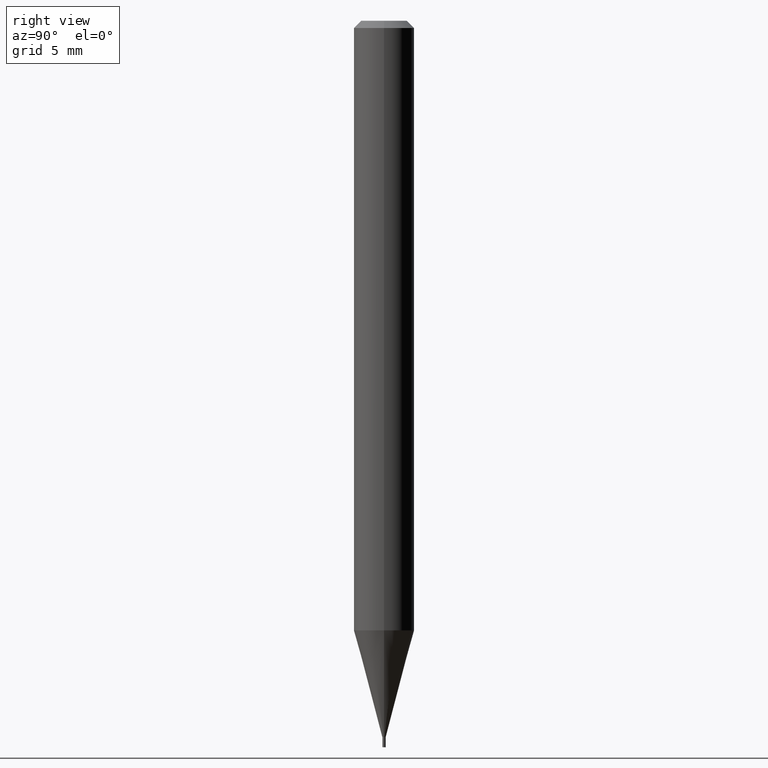
[diagram: clean part render]
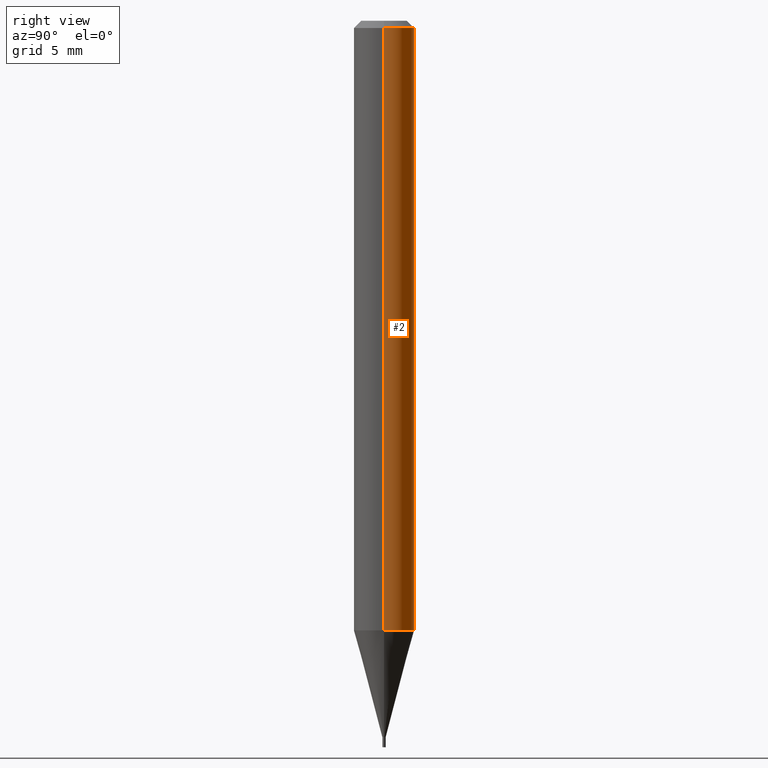
[diagram: same view with one face highlighted and labeled with its STEP entity id]
A machine part, right view. The second image highlights one B-rep face of the part: STEP entity #2.
In plain terms, the highlighted cylindrical surface (edge-blend (fillet) strip) has radius 1.5875 mm, axis along (-0, 0, 1).
Its self-contained STEP definition (entity closure, byte-faithful):
#2 = ADVANCED_FACE ( 'NONE', ( #253 ), #115, .T. ) ;
#17 = VECTOR ( 'NONE', #47, 39.37007874015748143 ) ;
#47 = DIRECTION ( 'NONE',  ( -2.445468806185136877E-29, 3.491481338843145188E-15, 1.000000000000000000 ) ) ;
#49 = CARTESIAN_POINT ( 'NONE',  ( -0.06250000000000000000, -1.779650970633650017E-15, -0.01499999999999999944 ) ) ;
#50 = ORIENTED_EDGE ( 'NONE', *, *, #240, .T. ) ;
#51 = CARTESIAN_POINT ( 'NONE',  ( 0.06250000000000000000, -4.831543308240170251E-15, -1.258809002353435513 ) ) ;
#55 = CIRCLE ( 'NONE', #417, 0.06250000000000000000 ) ;
#71 = DIRECTION ( 'NONE',  ( 1.000000000000000000, -6.982962677686266711E-15, 4.876176775795935793E-29 ) ) ;
#115 = CYLINDRICAL_SURFACE ( 'NONE', #424, 0.06250000000000000000 ) ;
#132 = VERTEX_POINT ( 'NONE', #279 ) ;
#139 = CARTESIAN_POINT ( 'NONE',  ( -0.06250000000000000000, -3.951018931034715176E-15, -1.258809002353435513 ) ) ;
#149 = DIRECTION ( 'NONE',  ( -2.445468806185136597E-29, 3.491481338843145583E-15, 1.000000000000000000 ) ) ;
#156 = VERTEX_POINT ( 'NONE', #49 ) ;
#157 = EDGE_CURVE ( 'NONE', #132, #156, #280, .T. ) ;
#219 = CARTESIAN_POINT ( 'NONE',  ( -0.06250000000000000000, 4.440892098500626162E-16, -3.074334431409316114E-30 ) ) ;
#228 = DIRECTION ( 'NONE',  ( -2.445468806185136597E-29, 3.491481338843145583E-15, 1.000000000000000000 ) ) ;
#231 = LINE ( 'NONE', #300, #17 ) ;
#237 = ORIENTED_EDGE ( 'NONE', *, *, #157, .F. ) ;
#240 = EDGE_CURVE ( 'NONE', #434, #156, #364, .T. ) ;
#247 = CARTESIAN_POINT ( 'NONE',  ( 0.000000000000000000, 0.000000000000000000, 0.000000000000000000 ) ) ;
#251 = AXIS2_PLACEMENT_3D ( 'NONE', #414, #339, #341 ) ;
#253 = FACE_OUTER_BOUND ( 'NONE', #329, .T. ) ;
#258 = ORIENTED_EDGE ( 'NONE', *, *, #267, .T. ) ;
#267 = EDGE_CURVE ( 'NONE', #408, #434, #55, .T. ) ;
#279 = CARTESIAN_POINT ( 'NONE',  ( 0.06250000000000000000, -4.888073874380388472E-16, -0.01499999999999999944 ) ) ;
#280 = CIRCLE ( 'NONE', #251, 0.06250000000000000000 ) ;
#300 = CARTESIAN_POINT ( 'NONE',  ( 0.06250000000000000000, -4.364351673553916694E-16, 3.047610484872459871E-30 ) ) ;
#323 = DIRECTION ( 'NONE',  ( -2.445468806185136877E-29, 3.491481338843145188E-15, 1.000000000000000000 ) ) ;
#329 = EDGE_LOOP ( 'NONE', ( #258, #50, #237, #432 ) ) ;
#339 = DIRECTION ( 'NONE',  ( -2.445468806185136597E-29, 3.491481338843145583E-15, 1.000000000000000000 ) ) ;
#341 = DIRECTION ( 'NONE',  ( 1.000000000000000000, -6.982962677686266711E-15, 0.000000000000000000 ) ) ;
#364 = LINE ( 'NONE', #219, #437 ) ;
#376 = CARTESIAN_POINT ( 'NONE',  ( 3.078378148200359135E-29, -4.395108140884777792E-15, -1.258809002353435513 ) ) ;
#408 = VERTEX_POINT ( 'NONE', #51 ) ;
#409 = DIRECTION ( 'NONE',  ( 1.000000000000000000, -6.982962677686262766E-15, 0.000000000000000000 ) ) ;
#414 = CARTESIAN_POINT ( 'NONE',  ( 3.668203209277705088E-31, -5.237222008264718399E-17, -0.01499999999999999944 ) ) ;
#417 = AXIS2_PLACEMENT_3D ( 'NONE', #376, #228, #409 ) ;
#424 = AXIS2_PLACEMENT_3D ( 'NONE', #247, #149, #71 ) ;
#428 = EDGE_CURVE ( 'NONE', #408, #132, #231, .T. ) ;
#432 = ORIENTED_EDGE ( 'NONE', *, *, #428, .F. ) ;
#434 = VERTEX_POINT ( 'NONE', #139 ) ;
#437 = VECTOR ( 'NONE', #323, 39.37007874015748143 ) ;